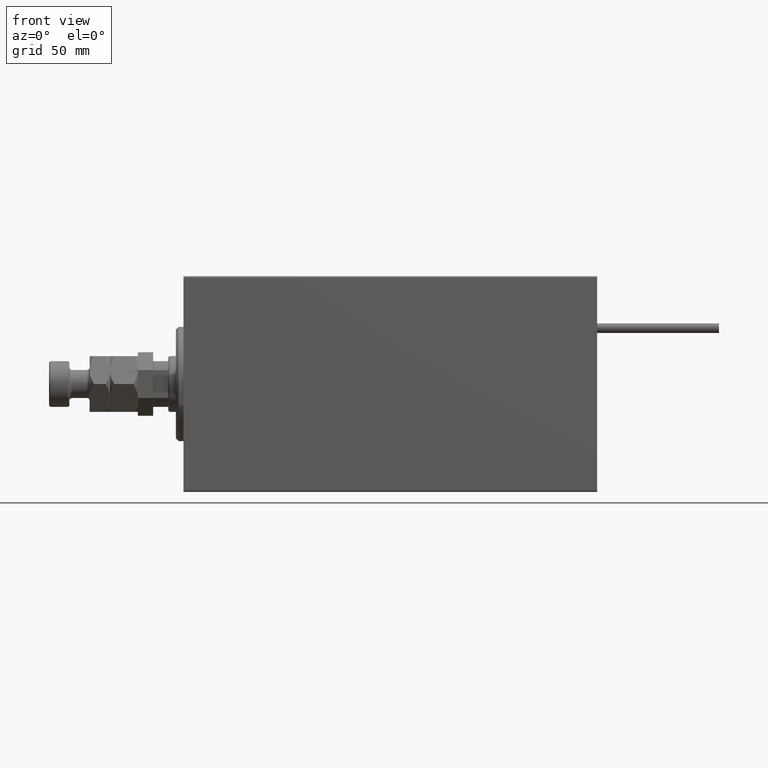
[diagram: clean part render]
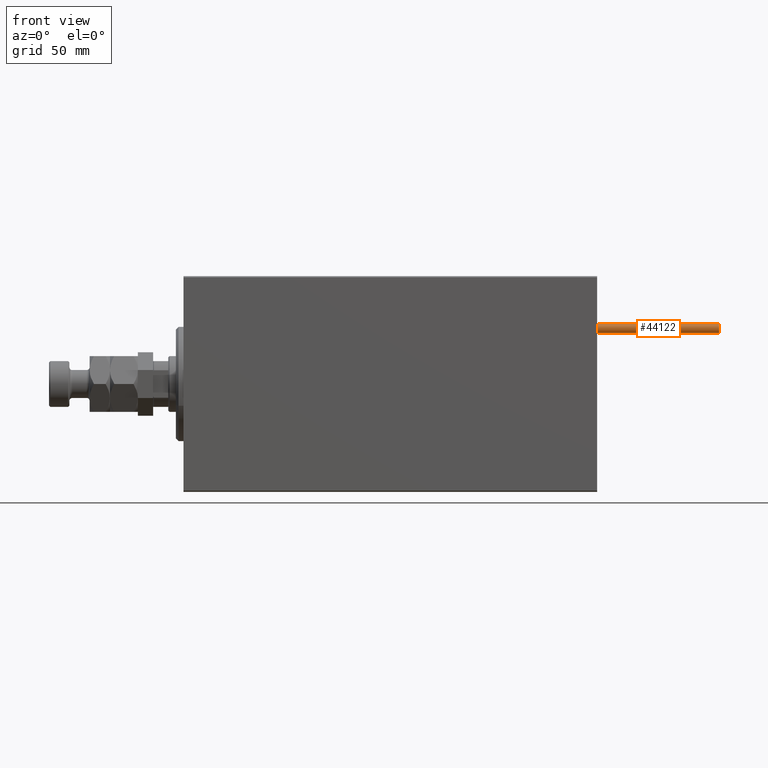
[diagram: same view with one face highlighted and labeled with its STEP entity id]
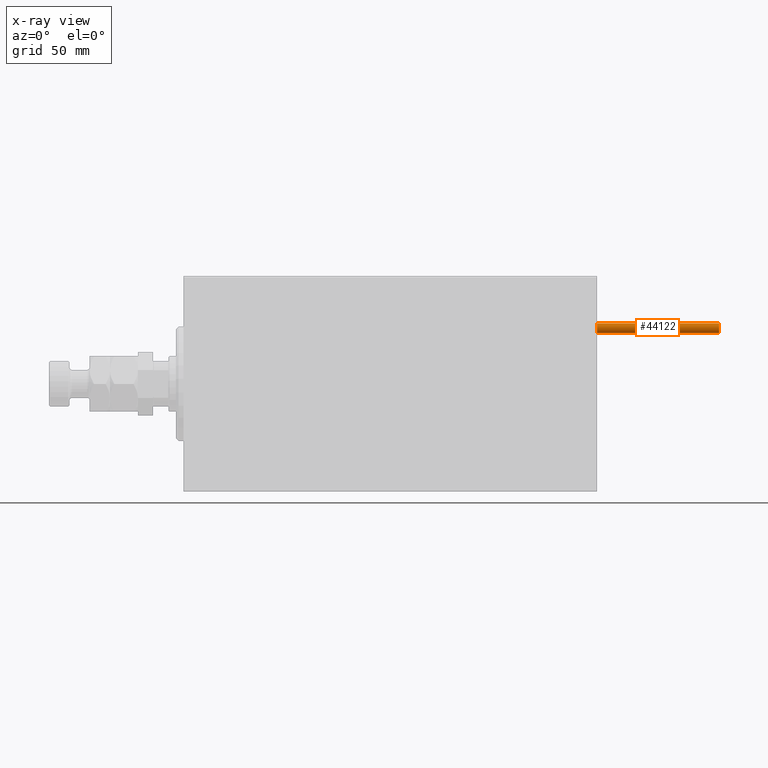
[diagram: x-ray of the same camera — body ghosted, the highlighted face saturated]
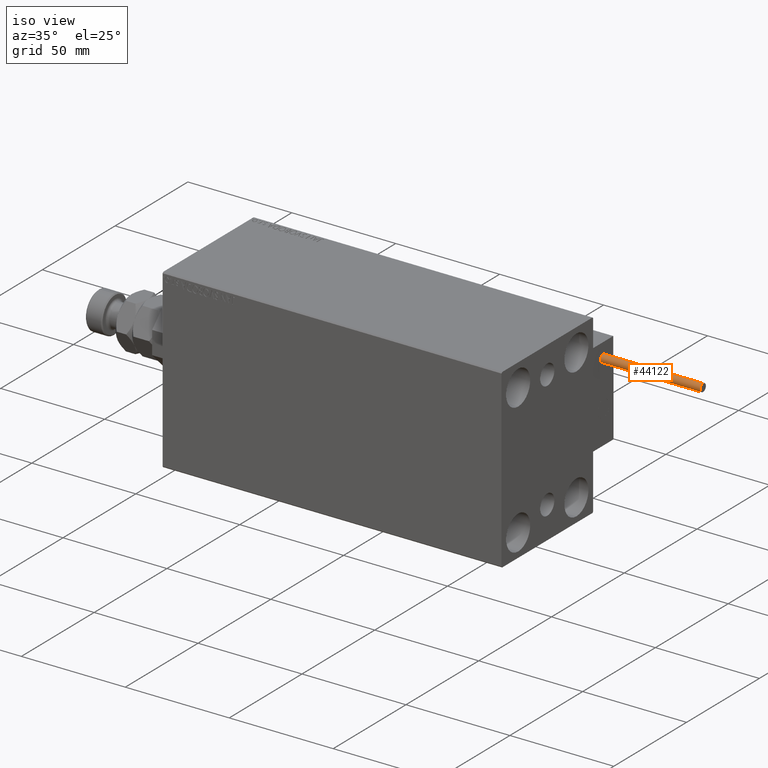
[diagram: same view with one face highlighted and labeled with its STEP entity id]
A machine part, front view. The second image highlights one B-rep face of the part: STEP entity #44122.
The next image is the same camera in x-ray: the body ghosted, the highlighted face saturated — about 0% of this face is hidden behind the body in this view.
A second angle (iso view) of the same face is appended — the face is thin or edge-on in the first view.
In plain terms, the highlighted cylindrical surface (edge-blend (fillet) strip) has radius 1.9 mm, axis along (-1, -0, 0).
Its self-contained STEP definition (entity closure, byte-faithful):
#1547 = CARTESIAN_POINT ( 'NONE',  ( 0.000000000000000000, 0.000000000000000000, 0.000000000000000000 ) ) ;
#2485 = CYLINDRICAL_SURFACE ( 'NONE', #15046, 1.899999999999999467 ) ;
#5521 = CARTESIAN_POINT ( 'NONE',  ( 1.899999999999999467, 2.326828918379970872E-16, 48.00000000000000000 ) ) ;
#5972 = ORIENTED_EDGE ( 'NONE', *, *, #13538, .T. ) ;
#9096 = DIRECTION ( 'NONE',  ( -0.000000000000000000, -0.000000000000000000, -1.000000000000000000 ) ) ;
#9226 = VECTOR ( 'NONE', #47704, 1000.000000000000000 ) ;
#11535 = VERTEX_POINT ( 'NONE', #28946 ) ;
#11991 = ORIENTED_EDGE ( 'NONE', *, *, #28050, .F. ) ;
#12504 = CARTESIAN_POINT ( 'NONE',  ( 1.899999999999999467, 2.326828918379970872E-16, 48.00000000000000000 ) ) ;
#13352 = EDGE_LOOP ( 'NONE', ( #39048, #11991, #26280, #5972 ) ) ;
#13538 = EDGE_CURVE ( 'NONE', #34602, #11535, #51650, .T. ) ;
#15046 = AXIS2_PLACEMENT_3D ( 'NONE', #34144, #22611, #38068 ) ;
#16680 = LINE ( 'NONE', #12504, #40077 ) ;
#18605 = DIRECTION ( 'NONE',  ( 1.000000000000000000, 0.000000000000000000, 0.000000000000000000 ) ) ;
#19184 = CARTESIAN_POINT ( 'NONE',  ( -1.899999999999999467, 0.000000000000000000, 48.00000000000000000 ) ) ;
#21318 = CARTESIAN_POINT ( 'NONE',  ( -1.899999999999999467, 0.000000000000000000, 0.000000000000000000 ) ) ;
#21983 = VERTEX_POINT ( 'NONE', #34291 ) ;
#22611 = DIRECTION ( 'NONE',  ( -0.000000000000000000, -0.000000000000000000, -1.000000000000000000 ) ) ;
#23132 = LINE ( 'NONE', #19184, #9226 ) ;
#26280 = ORIENTED_EDGE ( 'NONE', *, *, #44348, .T. ) ;
#27490 = DIRECTION ( 'NONE',  ( 0.000000000000000000, 0.000000000000000000, 1.000000000000000000 ) ) ;
#28050 = EDGE_CURVE ( 'NONE', #21983, #39418, #39522, .T. ) ;
#28946 = CARTESIAN_POINT ( 'NONE',  ( 1.899999999999999467, 2.326828918379970872E-16, 0.000000000000000000 ) ) ;
#34144 = CARTESIAN_POINT ( 'NONE',  ( 0.000000000000000000, 0.000000000000000000, 48.00000000000000000 ) ) ;
#34291 = CARTESIAN_POINT ( 'NONE',  ( -1.899999999999999467, 0.000000000000000000, 48.00000000000000000 ) ) ;
#34602 = VERTEX_POINT ( 'NONE', #21318 ) ;
#35756 = AXIS2_PLACEMENT_3D ( 'NONE', #1547, #37619, #45741 ) ;
#37619 = DIRECTION ( 'NONE',  ( 0.000000000000000000, 0.000000000000000000, 1.000000000000000000 ) ) ;
#38068 = DIRECTION ( 'NONE',  ( -1.000000000000000000, 0.000000000000000000, 0.000000000000000000 ) ) ;
#39048 = ORIENTED_EDGE ( 'NONE', *, *, #42278, .F. ) ;
#39418 = VERTEX_POINT ( 'NONE', #5521 ) ;
#39522 = CIRCLE ( 'NONE', #47026, 1.899999999999999467 ) ;
#40077 = VECTOR ( 'NONE', #9096, 1000.000000000000000 ) ;
#41979 = FACE_OUTER_BOUND ( 'NONE', #13352, .T. ) ;
#42278 = EDGE_CURVE ( 'NONE', #39418, #11535, #16680, .T. ) ;
#44122 = ADVANCED_FACE ( 'NONE', ( #41979 ), #2485, .T. ) ;
#44348 = EDGE_CURVE ( 'NONE', #21983, #34602, #23132, .T. ) ;
#45741 = DIRECTION ( 'NONE',  ( 1.000000000000000000, 0.000000000000000000, 0.000000000000000000 ) ) ;
#46607 = CARTESIAN_POINT ( 'NONE',  ( 0.000000000000000000, 0.000000000000000000, 48.00000000000000000 ) ) ;
#47026 = AXIS2_PLACEMENT_3D ( 'NONE', #46607, #27490, #18605 ) ;
#47704 = DIRECTION ( 'NONE',  ( -0.000000000000000000, -0.000000000000000000, -1.000000000000000000 ) ) ;
#51650 = CIRCLE ( 'NONE', #35756, 1.899999999999999467 ) ;